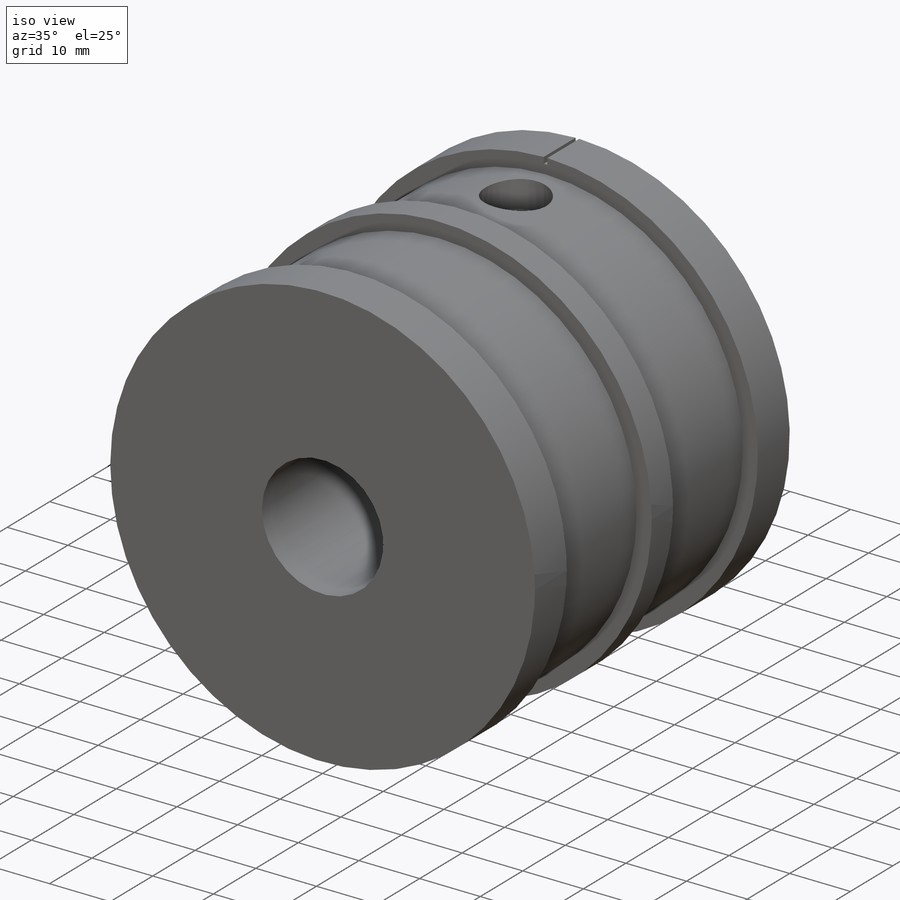
[diagram: iso view]
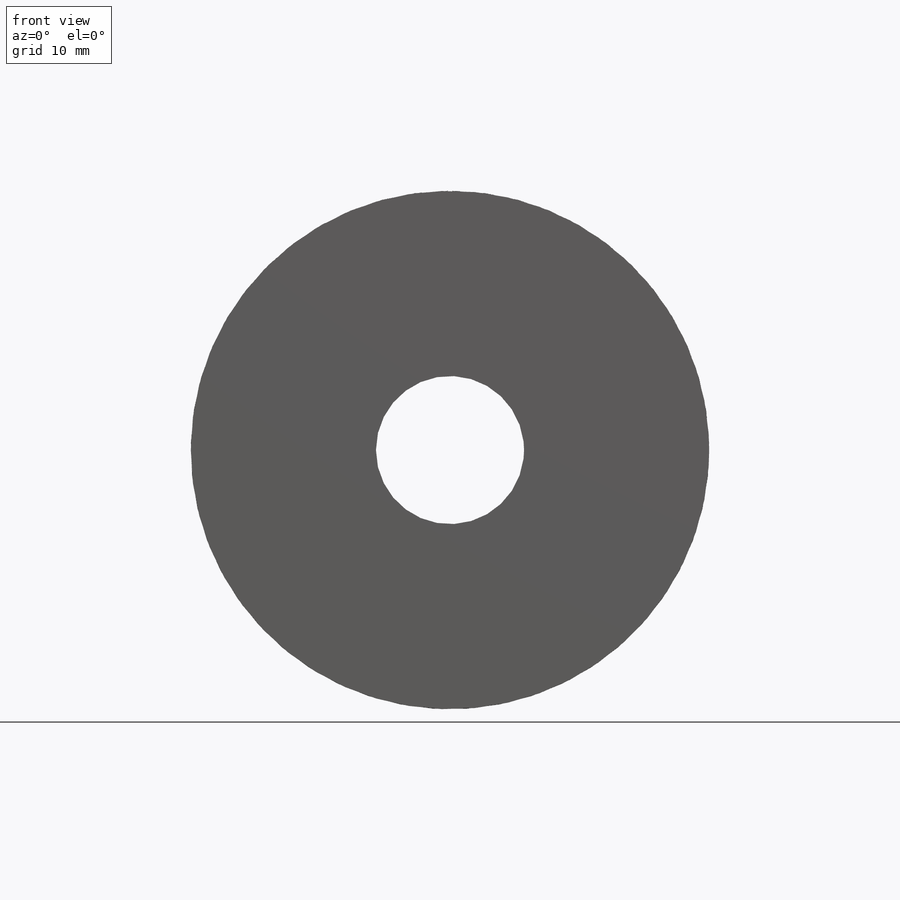
[diagram: front view]
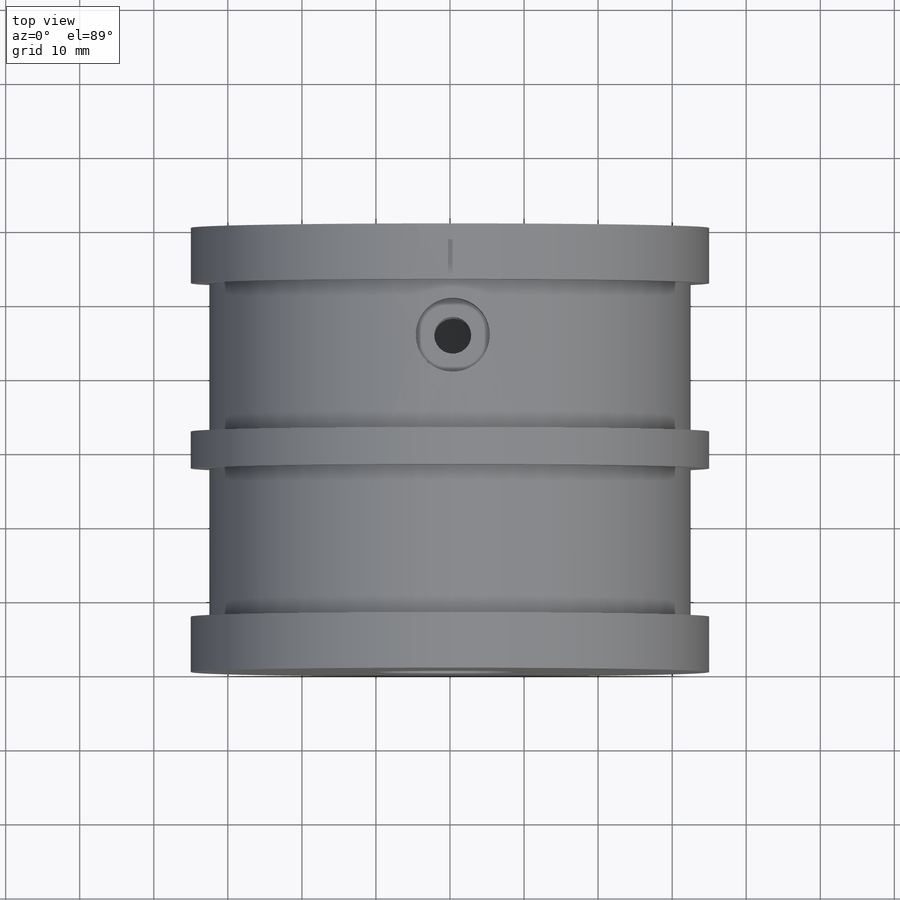
[diagram: top view]
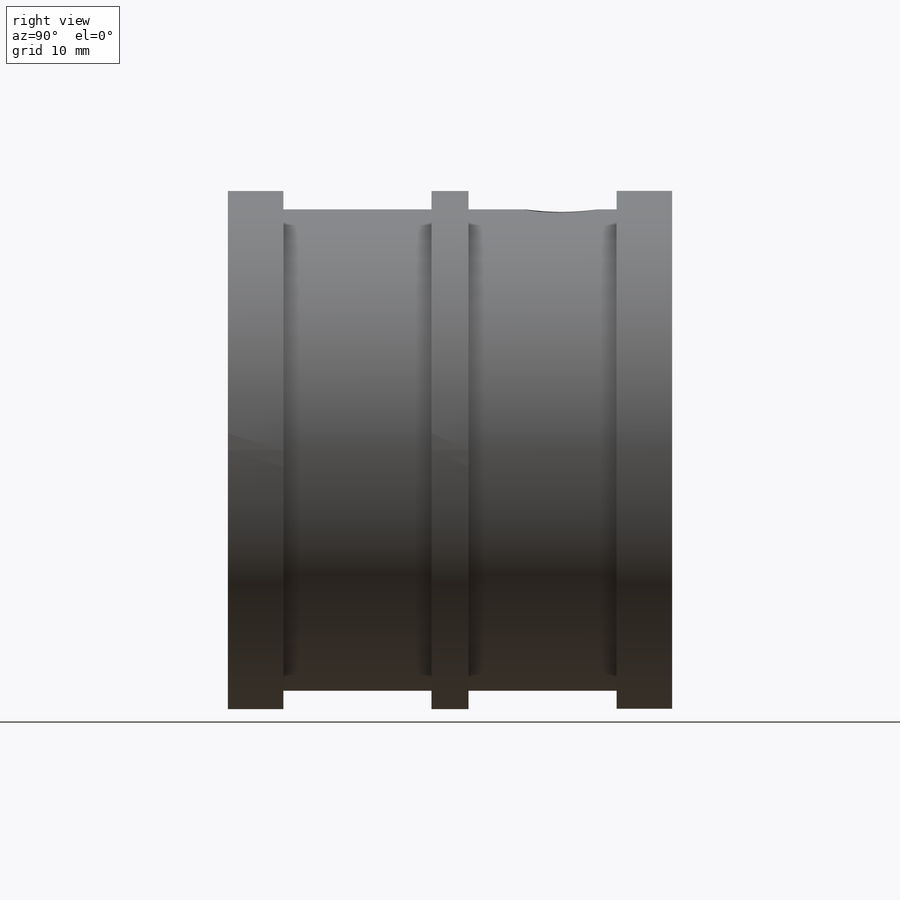
[diagram: right view]
SOLIDWORKS PART (.sldprt)
format: sldprt  version: not decoded by parser v0  size: 239,104 bytes
history: native  units: mm
features: sketch x8, extrude x5, plane x3, cut_extrude x3, material x1 (+9 scaffold rows collapsed)
feature tree (29):
  scaffold x9  (default folders/planes/origin — collapsed)
  material  "Matériau <non spécifié>"
  plane  "Plan de face"
  plane  "Plan de dessus"
  plane  "Plan de droite"
  sketch  "Esquisse1"  dims[D1=70.0mm D2=20.0mm]
  extrude  "Boss.-Extru.1"  Depth=7.5mm
  sketch  "Esquisse2"  dims[D1=65.0mm]
  extrude  "Boss.-Extru.2"  Depth=20mm
  sketch  "Esquisse3"
  extrude  "Boss.-Extru.3"  Depth=5mm
  sketch  "Esquisse4"  dims[D1=65.0mm]
  extrude  "Boss.-Extru.4"  Depth=20mm
  sketch  "Esquisse5"
  extrude  "Boss.-Extru.5"  Depth=7.5mm
  sketch  "Esquisse7"  dims[D1=0.3mm D2=0.3mm]
  cut_extrude  "Enlèv. mat.-Extru.3"  Depth=7.5mm
  sketch  "Esquisse3D5"  dims[D3=10.0mm D1=10.0mm D2=15.0mm]
  cut_extrude  "Enlèv. mat.-Extru.6"  Depth=1mm
  sketch  "Esquisse3D6"  dims[D1=5.0mm]
  cut_extrude  "Enlèv. mat.-Extru.7"  [1 undecoded]
decode coverage: 13 of 16 modeling features carry decoded parameters
note: 1 parameter value undecoded
note: suppression state not decoded; provenance and decode notes live in map.json
